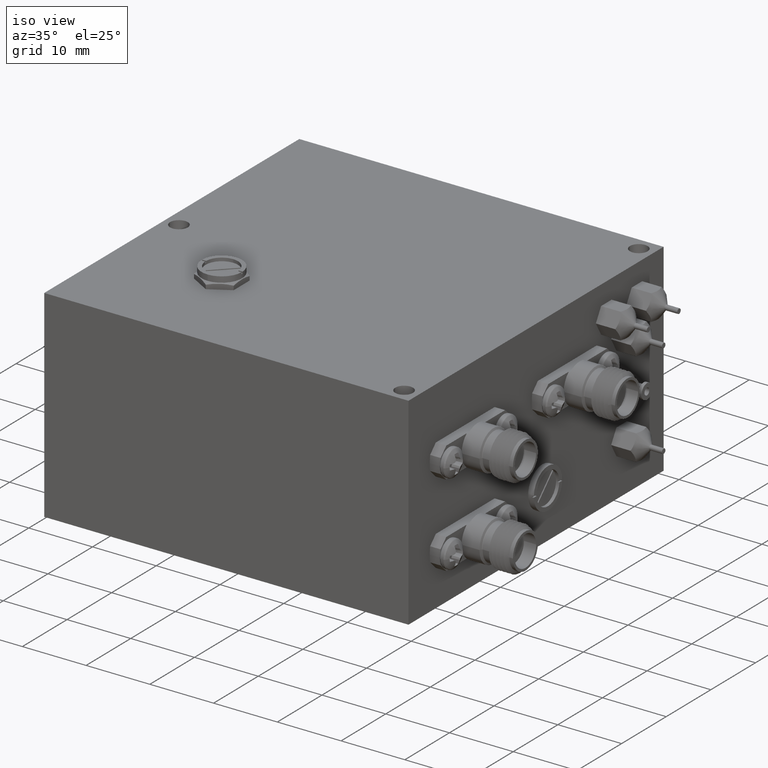
[diagram: clean part render]
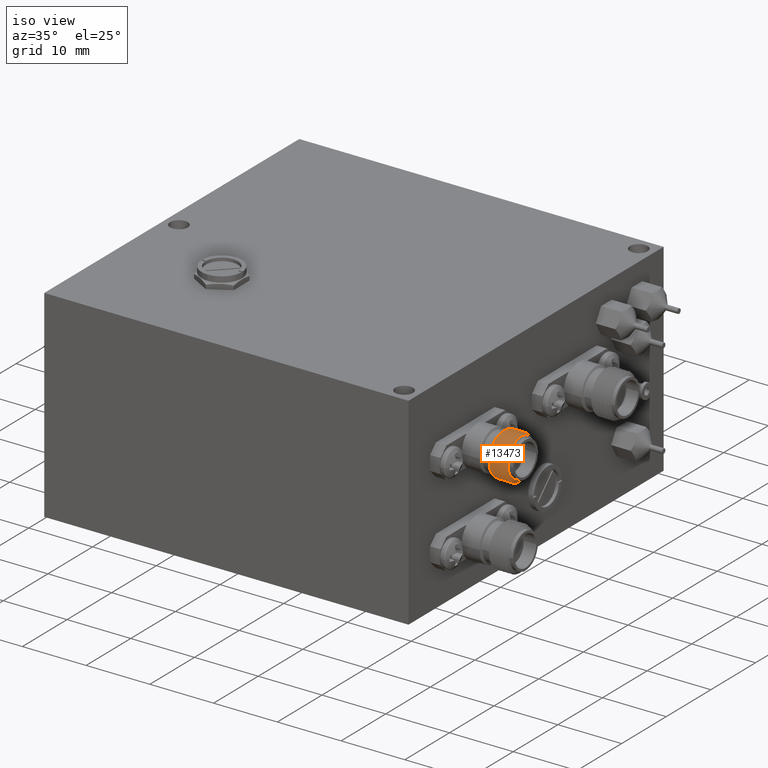
[diagram: same view with one face highlighted and labeled with its STEP entity id]
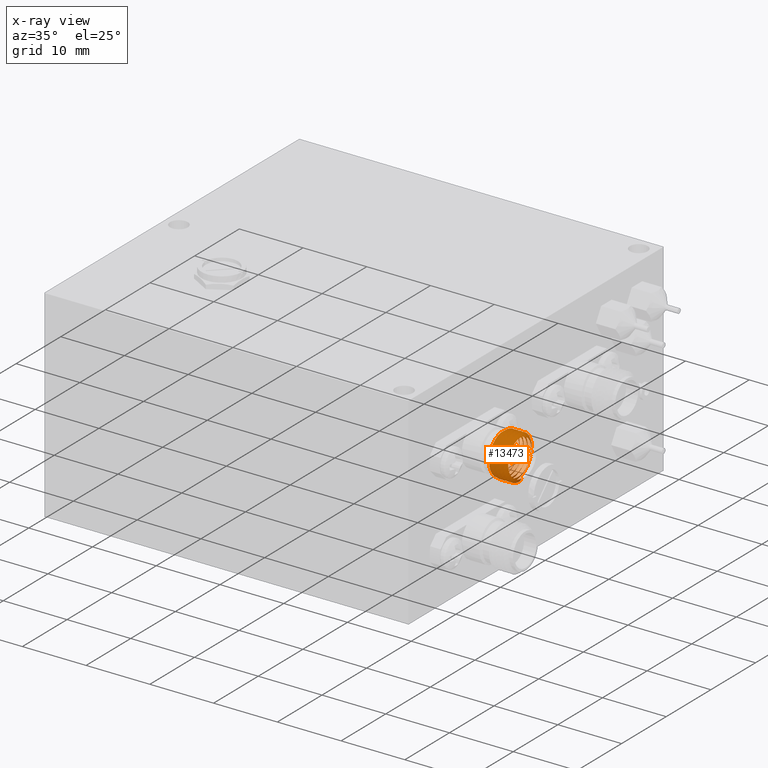
[diagram: x-ray of the same camera — body ghosted, the highlighted face saturated]
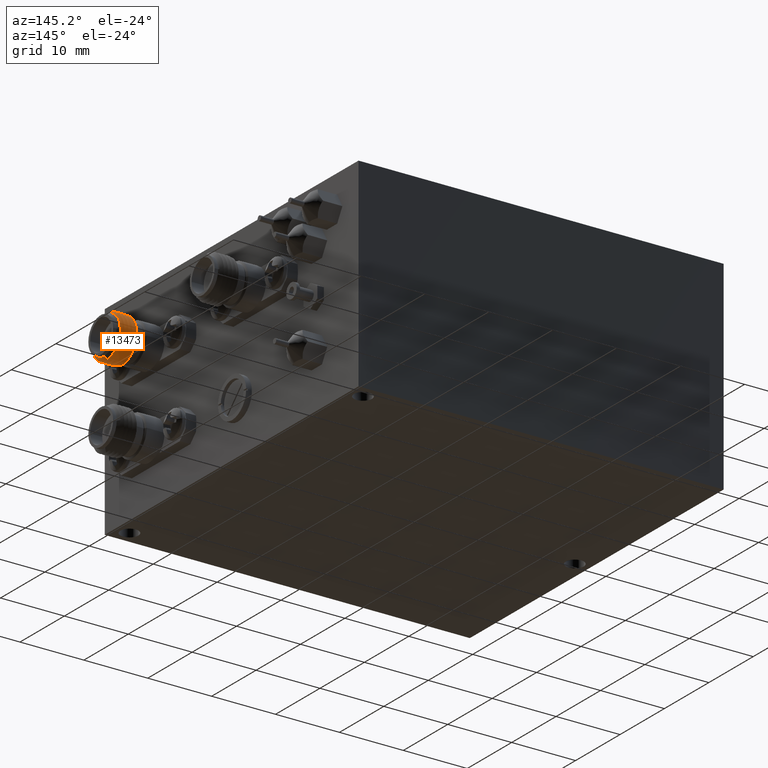
[diagram: same view with one face highlighted and labeled with its STEP entity id]
A machine part, iso view. The second image highlights one B-rep face of the part: STEP entity #13473.
The next image is the same camera in x-ray: the body ghosted, the highlighted face saturated — about 0% of this face is hidden behind the body in this view.
A second angle (auxiliary view) of the same face is appended — the face is thin or edge-on in the first view.
In plain terms, the highlighted face is a freeform B-spline surface patch.
Its self-contained STEP definition (entity closure, byte-faithful):
#277 = CARTESIAN_POINT ( 'NONE',  ( 1.322416666666667700, -0.5484914703891417000, 0.9625166604983957900 ) ) ;
#341 = CARTESIAN_POINT ( 'NONE',  ( 1.351632486540518900, -0.5684382037396831200, 0.7346478170536251400 ) ) ;
#400 = CARTESIAN_POINT ( 'NONE',  ( 1.376583333333334600, -0.7015085296108597400, 0.9625166604983957900 ) ) ;
#460 = CARTESIAN_POINT ( 'NONE',  ( 1.352991431684598800, -0.5179250544449141000, 0.7919435934893945800 ) ) ;
#521 = CARTESIAN_POINT ( 'NONE',  ( 1.378666666666667800, -0.7397627944162886700, 0.8962583302491979900 ) ) ;
#587 = ORIENTED_EDGE ( 'NONE', *, *, #5314, .F. ) ;
#1064 = ORIENTED_EDGE ( 'NONE', *, *, #31271, .T. ) ;
#1092 = CARTESIAN_POINT ( 'NONE',  ( 1.353691243270271500, -0.5105681033398596900, 0.8300000000006252400 ) ) ;
#1323 = CARTESIAN_POINT ( 'NONE',  ( 1.363953039316305700, -0.5673687450793881700, 0.7104703852694200800 ) ) ;
#1602 = CARTESIAN_POINT ( 'NONE',  ( 1.362945418892554100, -0.6336490465677558900, 0.6997026091599503100 ) ) ;
#1769 = CARTESIAN_POINT ( 'NONE',  ( 1.426583333333334600, -0.5609914703891414300, 0.7191339745962155300 ) ) ;
#1809 = CARTESIAN_POINT ( 'NONE',  ( 1.430750000000000900, -0.4969829407782824800, 0.8300000000000006300 ) ) ;
#1889 = CARTESIAN_POINT ( 'NONE',  ( 1.355750000000001300, -0.4969829407782825300, 0.8300000000000002900 ) ) ;
#1937 = CARTESIAN_POINT ( 'NONE',  ( 1.464083333333334500, -0.6890085296108594500, 0.9408660254037851700 ) ) ;
#2023 = CARTESIAN_POINT ( 'NONE',  ( 1.370333333333334700, -0.7210127944162887400, 0.7745669872981079100 ) ) ;
#2133 = CARTESIAN_POINT ( 'NONE',  ( 1.428666666666667400, -0.7397627944162886700, 0.8962583302491981000 ) ) ;
#2171 = CARTESIAN_POINT ( 'NONE',  ( 1.472416666666667600, -0.6890085296108593400, 0.7191339745962157500 ) ) ;
#2286 = CARTESIAN_POINT ( 'NONE',  ( 1.484916666666668000, -0.5609914703891418800, 0.9408660254037851700 ) ) ;
#2377 = CARTESIAN_POINT ( 'NONE',  ( 1.449500000000001100, -0.6250000000000004400, 0.9625166604983961300 ) ) ;
#2407 = CARTESIAN_POINT ( 'NONE',  ( 1.326583333333334300, -0.5609914703891414300, 0.7191339745962156400 ) ) ;
#2449 = CARTESIAN_POINT ( 'NONE',  ( 1.416166666666667900, -0.7210127944162888500, 0.8854330127018925600 ) ) ;
#2453 = CARTESIAN_POINT ( 'NONE',  ( 1.355981127483678800, -0.5761133559190545500, 0.9381203385156557900 ) ) ;
#2533 = CARTESIAN_POINT ( 'NONE',  ( 1.334916666666668300, -0.5609914703891417700, 0.9408660254037851700 ) ) ;
#2639 = CARTESIAN_POINT ( 'NONE',  ( 1.397416666666667900, -0.5484914703891418100, 0.9625166604983957900 ) ) ;
#2669 = CARTESIAN_POINT ( 'NONE',  ( 1.445333333333334500, -0.5102372055837122200, 0.8962583302491982100 ) ) ;
#2713 = CARTESIAN_POINT ( 'NONE',  ( 1.366166666666668100, -0.7210127944162888500, 0.8854330127018925600 ) ) ;
#2717 = CARTESIAN_POINT ( 'NONE',  ( 1.355154026298697900, -0.5388488010248736500, 0.9095075033588867500 ) ) ;
#2803 = CARTESIAN_POINT ( 'NONE',  ( 1.459916666666667400, -0.7015085296108590800, 0.6974833395016044600 ) ) ;
#2847 = CARTESIAN_POINT ( 'NONE',  ( 1.409916666666667800, -0.5609914703891418800, 0.9408660254037850600 ) ) ;
#2904 = ORIENTED_EDGE ( 'NONE', *, *, #30068, .F. ) ;
#2929 = CARTESIAN_POINT ( 'NONE',  ( 1.478666666666667500, -0.7397627944162886700, 0.8962583302491982100 ) ) ;
#3034 = CARTESIAN_POINT ( 'NONE',  ( 1.365222565178984700, -0.5275728415739724400, 0.7337154674341513900 ) ) ;
#3060 = CARTESIAN_POINT ( 'NONE',  ( 1.316166666666668500, -0.5102372055837119900, 0.7637416697508023800 ) ) ;
#3155 = CARTESIAN_POINT ( 'NONE',  ( 1.368250000000001500, -0.4719829407782826200, 0.8300000000000008500 ) ) ;
#3188 = CARTESIAN_POINT ( 'NONE',  ( 1.345333333333334800, -0.5102372055837121100, 0.8962583302491982100 ) ) ;
#3306 = CARTESIAN_POINT ( 'NONE',  ( 1.357833333333334600, -0.7397627944162886700, 0.7637416697508021500 ) ) ;
#3380 = CARTESIAN_POINT ( 'NONE',  ( 1.353691243270271500, -0.5105681033398596900, 0.8300000000006252400 ) ) ;
#3592 = CARTESIAN_POINT ( 'NONE',  ( 1.334916666666667600, -0.7015085296108590800, 0.6974833395016044600 ) ) ;
#4403 = CARTESIAN_POINT ( 'NONE',  ( 1.351632486540518900, -0.5684382037396831200, 0.7346478170536251400 ) ) ;
#4623 = CARTESIAN_POINT ( 'NONE',  ( 1.360848219047073600, -0.7396703653398036800, 0.7746557617826112000 ) ) ;
#4696 = CARTESIAN_POINT ( 'NONE',  ( 1.462000000000000900, -0.6250000000000004400, 0.9408660254037850600 ) ) ;
#4786 = CARTESIAN_POINT ( 'NONE',  ( 1.399500000000001100, -0.6250000000000003300, 0.7191339745962153100 ) ) ;
#4840 = CARTESIAN_POINT ( 'NONE',  ( 1.432833333333334500, -0.5289872055837122600, 0.8854330127018927900 ) ) ;
#4929 = CARTESIAN_POINT ( 'NONE',  ( 1.441166666666667800, -0.7210127944162886300, 0.8854330127018926700 ) ) ;
#5033 = CARTESIAN_POINT ( 'NONE',  ( 1.459916666666667600, -0.7015085296108588600, 0.6974833395016043500 ) ) ;
#5068 = CARTESIAN_POINT ( 'NONE',  ( 1.434916666666668200, -0.5609914703891416600, 0.9408660254037849400 ) ) ;
#5109 = CARTESIAN_POINT ( 'NONE',  ( 1.472416666666667800, -0.6890085296108593400, 0.7191339745962158600 ) ) ;
#5157 = B_SPLINE_CURVE_WITH_KNOTS ( 'NONE', 1,
 ( #12056, #21266 ),
 .UNSPECIFIED., .F., .F.,
 ( 2, 2 ),
 ( 0.0000000000000000000, 0.0006350000000000044800 ),
 .UNSPECIFIED. ) ;
#5160 = CARTESIAN_POINT ( 'NONE',  ( 1.414083333333334500, -0.5484914703891410300, 0.6974833395016049000 ) ) ;
#5192 = CARTESIAN_POINT ( 'NONE',  ( 1.414083333333334900, -0.6890085296108594500, 0.9408660254037853900 ) ) ;
#5236 = CARTESIAN_POINT ( 'NONE',  ( 1.474500000000001500, -0.6250000000000003300, 0.7191339745962154200 ) ) ;
#5282 = CARTESIAN_POINT ( 'NONE',  ( 1.462000000000000900, -0.6250000000000004400, 0.6974833395016043500 ) ) ;
#5314 = EDGE_CURVE ( 'NONE', #30065, #32068, #25106, .T. ) ;
#5319 = CARTESIAN_POINT ( 'NONE',  ( 1.443250000000001500, -0.7530170592217180200, 0.8300000000000005200 ) ) ;
#5368 = CARTESIAN_POINT ( 'NONE',  ( 1.376583333333334800, -0.5609914703891413200, 0.7191339745962158600 ) ) ;
#5417 = CARTESIAN_POINT ( 'NONE',  ( 1.443250000000001000, -0.4719829407782825100, 0.8300000000000006300 ) ) ;
#5452 = CARTESIAN_POINT ( 'NONE',  ( 1.432833333333334500, -0.7397627944162887800, 0.7637416697508023800 ) ) ;
#5499 = CARTESIAN_POINT ( 'NONE',  ( 1.391166666666668000, -0.7210127944162888500, 0.8854330127018925600 ) ) ;
#5503 = CARTESIAN_POINT ( 'NONE',  ( 1.355565543954522400, -0.5560893095883074900, 0.9257105285942960300 ) ) ;
#5550 = CARTESIAN_POINT ( 'NONE',  ( 1.412000000000001000, -0.6250000000000003300, 0.6974833395016044600 ) ) ;
#5585 = CARTESIAN_POINT ( 'NONE',  ( 1.470333333333334200, -0.5102372055837124400, 0.8962583302491982100 ) ) ;
#5626 = CARTESIAN_POINT ( 'NONE',  ( 1.353666666666668100, -0.5289872055837117100, 0.7745669872981083600 ) ) ;
#5714 = CARTESIAN_POINT ( 'NONE',  ( 1.428666666666667400, -0.7397627944162886700, 0.8962583302491982100 ) ) ;
#5768 = CARTESIAN_POINT ( 'NONE',  ( 1.358576897647566300, -0.7195248229567544600, 0.9089236849974511300 ) ) ;
#5855 = CARTESIAN_POINT ( 'NONE',  ( 1.451583333333334300, -0.7015085296108595200, 0.9625166604983957900 ) ) ;
#5904 = CARTESIAN_POINT ( 'NONE',  ( 1.364083333333334900, -0.6890085296108593400, 0.9408660254037851700 ) ) ;
#5983 = CARTESIAN_POINT ( 'NONE',  ( 1.359941243270269300, -0.7502572142074417400, 0.8299999999994676100 ) ) ;
#5993 = CARTESIAN_POINT ( 'NONE',  ( 1.347416666666668000, -0.6890085296108591200, 0.7191339745962157500 ) ) ;
#6232 = CARTESIAN_POINT ( 'NONE',  ( 1.370333333333334700, -0.5102372055837122200, 0.8962583302491982100 ) ) ;
#7549 = CARTESIAN_POINT ( 'NONE',  ( 1.361702719265506700, -0.7058241989662769100, 0.7297066870898026900 ) ) ;
#7779 = CARTESIAN_POINT ( 'NONE',  ( 1.441166666666667800, -0.7210127944162887400, 0.8854330127018926700 ) ) ;
#7786 = VERTEX_POINT ( 'NONE', #35692 ) ;
#7863 = CARTESIAN_POINT ( 'NONE',  ( 1.378666666666668000, -0.5289872055837120400, 0.7745669872981079100 ) ) ;
#7987 = CARTESIAN_POINT ( 'NONE',  ( 1.451583333333334300, -0.5609914703891414300, 0.7191339745962156400 ) ) ;
#8035 = CARTESIAN_POINT ( 'NONE',  ( 1.459916666666667900, -0.5609914703891418800, 0.9408660254037850600 ) ) ;
#8090 = ORIENTED_EDGE ( 'NONE', *, *, #13209, .F. ) ;
#8091 = CARTESIAN_POINT ( 'NONE',  ( 1.378666666666667800, -0.7397627944162888900, 0.8962583302491977700 ) ) ;
#8123 = CARTESIAN_POINT ( 'NONE',  ( 1.407833333333334600, -0.5289872055837122600, 0.8854330127018927900 ) ) ;
#8184 = EDGE_CURVE ( 'NONE', #7786, #8760, #5157, .T. ) ;
#8228 = CARTESIAN_POINT ( 'NONE',  ( 1.430750000000000900, -0.7780170592217181500, 0.8300000000000000700 ) ) ;
#8260 = CARTESIAN_POINT ( 'NONE',  ( 1.403666666666668000, -0.5289872055837121500, 0.7745669872981078000 ) ) ;
#8298 = CARTESIAN_POINT ( 'NONE',  ( 1.470333333333334200, -0.7210127944162888500, 0.7745669872981078000 ) ) ;
#8302 = CARTESIAN_POINT ( 'NONE',  ( 1.359941243270269300, -0.7502572142074417400, 0.8299999999994676100 ) ) ;
#8351 = CARTESIAN_POINT ( 'NONE',  ( 1.453666666666667800, -0.7397627944162887800, 0.8962583302491982100 ) ) ;
#8386 = CARTESIAN_POINT ( 'NONE',  ( 1.393250000000001700, -0.7530170592217180200, 0.8300000000000005200 ) ) ;
#8433 = CARTESIAN_POINT ( 'NONE',  ( 1.420333333333334600, -0.7210127944162886300, 0.7745669872981079100 ) ) ;
#8436 = CARTESIAN_POINT ( 'NONE',  ( 1.359681094375930500, -0.7490754303303981400, 0.8455985490232553700 ) ) ;
#8485 = CARTESIAN_POINT ( 'NONE',  ( 1.409916666666667400, -0.7015085296108588600, 0.6974833395016044600 ) ) ;
#8517 = CARTESIAN_POINT ( 'NONE',  ( 1.449500000000001100, -0.6250000000000004400, 0.9625166604983961300 ) ) ;
#8562 = CARTESIAN_POINT ( 'NONE',  ( 1.355427488492216200, -0.5500097221791242500, 0.9207246178149328700 ) ) ;
#8614 = CARTESIAN_POINT ( 'NONE',  ( 1.407833333333334400, -0.7397627944162884500, 0.7637416697508020400 ) ) ;
#8653 = CARTESIAN_POINT ( 'NONE',  ( 1.397416666666668100, -0.5484914703891417000, 0.9625166604983960200 ) ) ;
#8758 = CARTESIAN_POINT ( 'NONE',  ( 1.366166666666668100, -0.5102372055837118800, 0.7637416697508026000 ) ) ;
#8760 = VERTEX_POINT ( 'NONE', #11857 ) ;
#8792 = CARTESIAN_POINT ( 'NONE',  ( 1.424500000000001200, -0.6250000000000004400, 0.9625166604983961300 ) ) ;
#8837 = CARTESIAN_POINT ( 'NONE',  ( 1.356385368117575500, -0.5981586144242757600, 0.9462979250268333000 ) ) ;
#8918 = CARTESIAN_POINT ( 'NONE',  ( 1.405750000000001600, -0.7780170592217182700, 0.8300000000000002900 ) ) ;
#9044 = CARTESIAN_POINT ( 'NONE',  ( 1.395333333333334600, -0.5102372055837122200, 0.8962583302491982100 ) ) ;
#9186 = CARTESIAN_POINT ( 'NONE',  ( 1.384916666666667700, -0.7015085296108590800, 0.6974833395016044600 ) ) ;
#9321 = CARTESIAN_POINT ( 'NONE',  ( 1.337000000000000900, -0.6250000000000004400, 0.6974833395016044600 ) ) ;
#9389 = CARTESIAN_POINT ( 'NONE',  ( 1.351816726955581600, -0.5598423026224531600, 0.7393757710400694600 ) ) ;
#9446 = CARTESIAN_POINT ( 'NONE',  ( 1.312000000000000900, -0.6250000000000004400, 0.6974833395016044600 ) ) ;
#9565 = CARTESIAN_POINT ( 'NONE',  ( 1.332833333333334200, -0.7397627944162886700, 0.7637416697508021500 ) ) ;
#10906 = CARTESIAN_POINT ( 'NONE',  ( 1.374500000000001200, -0.6250000000000004400, 0.7191339745962154200 ) ) ;
#11049 = CARTESIAN_POINT ( 'NONE',  ( 1.464083333333334500, -0.6890085296108594500, 0.9408660254037851700 ) ) ;
#11090 = CARTESIAN_POINT ( 'NONE',  ( 1.455750000000001400, -0.4969829407782826400, 0.8300000000000002900 ) ) ;
#11148 = CARTESIAN_POINT ( 'NONE',  ( 1.418250000000001100, -0.4719829407782826200, 0.8300000000000009600 ) ) ;
#11186 = CARTESIAN_POINT ( 'NONE',  ( 1.439083333333334800, -0.6890085296108595700, 0.9408660254037851700 ) ) ;
#11273 = CARTESIAN_POINT ( 'NONE',  ( 1.405750000000000900, -0.7780170592217182700, 0.8299999999999998500 ) ) ;
#11303 = CARTESIAN_POINT ( 'NONE',  ( 1.391166666666668000, -0.7210127944162887400, 0.8854330127018927900 ) ) ;
#11437 = CARTESIAN_POINT ( 'NONE',  ( 1.428666666666667900, -0.5289872055837120400, 0.7745669872981078000 ) ) ;
#11484 = CARTESIAN_POINT ( 'NONE',  ( 1.393250000000001200, -0.7530170592217180200, 0.8300000000000001800 ) ) ;
#11541 = CARTESIAN_POINT ( 'NONE',  ( 1.441166666666667800, -0.5102372055837119900, 0.7637416697508023800 ) ) ;
#11576 = CARTESIAN_POINT ( 'NONE',  ( 1.464083333333334300, -0.5484914703891415900, 0.6974833395016046800 ) ) ;
#11629 = CARTESIAN_POINT ( 'NONE',  ( 1.355022318154319300, -0.5339154262140052300, 0.9034323947599097700 ) ) ;
#11682 = CARTESIAN_POINT ( 'NONE',  ( 1.389083333333334300, -0.5484914703891410300, 0.6974833395016049000 ) ) ;
#11718 = CARTESIAN_POINT ( 'NONE',  ( 1.434916666666668000, -0.7015085296108589700, 0.6974833395016044600 ) ) ;
#11762 = CARTESIAN_POINT ( 'NONE',  ( 1.353833503074054900, -0.5103217021318750000, 0.8378139484000273200 ) ) ;
#11846 = CARTESIAN_POINT ( 'NONE',  ( 1.328666666666667800, -0.5289872055837120400, 0.7745669872981078000 ) ) ;
#11857 = CARTESIAN_POINT ( 'NONE',  ( 1.462000000000000900, -0.6250000000000004400, 0.6974833395016043500 ) ) ;
#11895 = CARTESIAN_POINT ( 'NONE',  ( 1.395333333333334600, -0.7210127944162884100, 0.7745669872981079100 ) ) ;
#11993 = CARTESIAN_POINT ( 'NONE',  ( 1.441166666666667800, -0.5102372055837122200, 0.7637416697508023800 ) ) ;
#12037 = CARTESIAN_POINT ( 'NONE',  ( 1.389083333333334800, -0.6890085296108596800, 0.9408660254037848300 ) ) ;
#12056 = CARTESIAN_POINT ( 'NONE',  ( 1.474500000000001500, -0.6250000000000003300, 0.7191339745962154200 ) ) ;
#12132 = CARTESIAN_POINT ( 'NONE',  ( 1.414083333333334700, -0.5484914703891414800, 0.6974833395016044600 ) ) ;
#12140 =( BOUNDED_SURFACE ( )  B_SPLINE_SURFACE ( 1, 2, ( 
 ( #37015, #34262, #15898, #18916, #28961, #18791, #32302, #2286, #29633, #17229, #23589, #17362, #38472, #2171, #14158, #20133, #19996, #11049, #26599, #17477, #29359, #20396, #38610, #7987, #23330, #23206, #16964, #5319, #4929, #11186, #14556, #5068, #38345, #26350, #11437, #1769, #14291, #32677, #14024, #26467, #32432, #5192, #26207, #35308, #8123, #23454, #8260, #29234, #4786, #38068, #29494, #8386, #11303, #23067, #32558, #20275, #26075, #14419, #7863, #29087, #10906, #32170, #2023, #35442, #35567, #20527, #35172, #17090, #38210, #1889, #15069, #30033, #20926, #5993, #35969, #39258, #38859, #32947, #29766, #2533, #29900, #24230, #11846, #2407, #20801 ),
 ( #30177, #38991, #23836, #26738, #2929, #23708, #32810, #17603, #5585, #27269, #26882, #11576, #14803, #2803, #17987, #38732, #39129, #5855, #8517, #33338, #2669, #17866, #11993, #20666, #23977, #11718, #5452, #36231, #5714, #27011, #8792, #36093, #33081, #14674, #14938, #12132, #21061, #24112, #27134, #8918, #33204, #18113, #21202, #8653, #9044, #30297, #35702, #35844, #17734, #9186, #27633, #30927, #521, #400, #27764, #12388, #6232, #15723, #33587, #27510, #36872, #12778, #3306, #18763, #27889, #30414, #24752, #12258, #3188, #30543, #24623, #18496, #9321, #3592, #9565, #21324, #18253, #21833, #30680, #277, #33469, #15333, #3060, #15478, #9446 ) ),
 .UNSPECIFIED., .F., .F., .F. ) 
 B_SPLINE_SURFACE_WITH_KNOTS ( ( 2, 2 ),
 ( 3, 2, 2, 2, 2, 2, 2, 2, 2, 2, 2, 2, 2, 2, 2, 2, 2, 2, 2, 2, 2, 2, 2, 2, 2, 2, 2, 2, 2, 2, 2, 2, 2, 2, 2, 2, 2, 2, 2, 2, 2, 2, 3 ),
 ( 0.0000000000000000000, 1.000000000000000000 ),
 ( 0.0000000000000000000, 0.02380952380952380800, 0.04761904761904761600, 0.07142857142857142500, 0.09523809523809523300, 0.1190476190476190400, 0.1428571428571428500, 0.1666666666666666600, 0.1904761904761904700, 0.2142857142857142700, 0.2380952380952380800, 0.2619047619047619200, 0.2857142857142857000, 0.3095238095238095300, 0.3333333333333333100, 0.3571428571428571500, 0.3809523809523809300, 0.4047619047619047700, 0.4285714285714285500, 0.4523809523809523800, 0.4761904761904761600, 0.5000000000000000000, 0.5238095238095238400, 0.5476190476190476700, 0.5714285714285714000, 0.5952380952380952300, 0.6190476190476190700, 0.6428571428571429000, 0.6666666666666666300, 0.6904761904761904700, 0.7142857142857143000, 0.7380952380952381400, 0.7619047619047618600, 0.7857142857142857000, 0.8095238095238095300, 0.8333333333333333700, 0.8571428571428571000, 0.8809523809523809300, 0.9047619047619047700, 0.9285714285714286000, 0.9523809523809523300, 0.9761904761904761600, 1.000000000000000000 ),
 .UNSPECIFIED. ) 
 GEOMETRIC_REPRESENTATION_ITEM ( )  RATIONAL_B_SPLINE_SURFACE ( (
 ( 1.000000000000000000, 0.8660254037844387100, 1.000000000000000000, 0.8660254037844387100, 1.000000000000000000, 0.8660254037844387100, 1.000000000000000000, 0.8660254037844387100, 1.000000000000000000, 0.8660254037844387100, 1.000000000000000000, 0.8660254037844387100, 1.000000000000000000, 0.8660254037844387100, 1.000000000000000000, 0.8660254037844387100, 1.000000000000000000, 0.8660254037844387100, 1.000000000000000000, 0.8660254037844387100, 1.000000000000000000, 0.8660254037844387100, 1.000000000000000000, 0.8660254037844387100, 1.000000000000000000, 0.8660254037844387100, 1.000000000000000000, 0.8660254037844387100, 1.000000000000000000, 0.8660254037844387100, 1.000000000000000000, 0.8660254037844387100, 1.000000000000000000, 0.8660254037844387100, 1.000000000000000000, 0.8660254037844387100, 1.000000000000000000, 0.8660254037844387100, 1.000000000000000000, 0.8660254037844387100, 1.000000000000000000, 0.8660254037844387100, 1.000000000000000000, 0.8660254037844387100, 1.000000000000000000, 0.8660254037844387100, 1.000000000000000000, 0.8660254037844387100, 1.000000000000000000, 0.8660254037844387100, 1.000000000000000000, 0.8660254037844387100, 1.000000000000000000, 0.8660254037844387100, 1.000000000000000000, 0.8660254037844387100, 1.000000000000000000, 0.8660254037844387100, 1.000000000000000000, 0.8660254037844387100, 1.000000000000000000, 0.8660254037844387100, 1.000000000000000000, 0.8660254037844387100, 1.000000000000000000, 0.8660254037844387100, 1.000000000000000000, 0.8660254037844387100, 1.000000000000000000, 0.8660254037844387100, 1.000000000000000000, 0.8660254037844387100, 1.000000000000000000, 0.8660254037844387100, 1.000000000000000000, 0.8660254037844387100, 1.000000000000000000, 0.8660254037844387100, 1.000000000000000000, 0.8660254037844387100, 1.000000000000000000, 0.8660254037844387100, 1.000000000000000000, 0.8660254037844387100, 1.000000000000000000),
 ( 1.000000000000000000, 0.8660254037844387100, 1.000000000000000000, 0.8660254037844387100, 1.000000000000000000, 0.8660254037844387100, 1.000000000000000000, 0.8660254037844387100, 1.000000000000000000, 0.8660254037844387100, 1.000000000000000000, 0.8660254037844387100, 1.000000000000000000, 0.8660254037844387100, 1.000000000000000000, 0.8660254037844387100, 1.000000000000000000, 0.8660254037844387100, 1.000000000000000000, 0.8660254037844387100, 1.000000000000000000, 0.8660254037844387100, 1.000000000000000000, 0.8660254037844387100, 1.000000000000000000, 0.8660254037844387100, 1.000000000000000000, 0.8660254037844387100, 1.000000000000000000, 0.8660254037844387100, 1.000000000000000000, 0.8660254037844387100, 1.000000000000000000, 0.8660254037844387100, 1.000000000000000000, 0.8660254037844387100, 1.000000000000000000, 0.8660254037844387100, 1.000000000000000000, 0.8660254037844387100, 1.000000000000000000, 0.8660254037844387100, 1.000000000000000000, 0.8660254037844387100, 1.000000000000000000, 0.8660254037844387100, 1.000000000000000000, 0.8660254037844387100, 1.000000000000000000, 0.8660254037844387100, 1.000000000000000000, 0.8660254037844387100, 1.000000000000000000, 0.8660254037844387100, 1.000000000000000000, 0.8660254037844387100, 1.000000000000000000, 0.8660254037844387100, 1.000000000000000000, 0.8660254037844387100, 1.000000000000000000, 0.8660254037844387100, 1.000000000000000000, 0.8660254037844387100, 1.000000000000000000, 0.8660254037844387100, 1.000000000000000000, 0.8660254037844387100, 1.000000000000000000, 0.8660254037844387100, 1.000000000000000000, 0.8660254037844387100, 1.000000000000000000, 0.8660254037844387100, 1.000000000000000000, 0.8660254037844387100, 1.000000000000000000, 0.8660254037844387100, 1.000000000000000000, 0.8660254037844387100, 1.000000000000000000, 0.8660254037844387100, 1.000000000000000000, 0.8660254037844387100, 1.000000000000000000) ) ) 
 REPRESENTATION_ITEM ( '' )  SURFACE ( )  );
#12258 = CARTESIAN_POINT ( 'NONE',  ( 1.347416666666668300, -0.5484914703891417000, 0.9625166604983960200 ) ) ;
#12388 = CARTESIAN_POINT ( 'NONE',  ( 1.372416666666668000, -0.5484914703891417000, 0.9625166604983960200 ) ) ;
#12778 = CARTESIAN_POINT ( 'NONE',  ( 1.359916666666668000, -0.7015085296108590800, 0.6974833395016044600 ) ) ;
#12838 = CARTESIAN_POINT ( 'NONE',  ( 1.352826180516759600, -0.5218087593785596400, 0.7830860000215483800 ) ) ;
#13209 = EDGE_CURVE ( 'NONE', #27652, #38986, #30757, .T. ) ;
#13444 = CARTESIAN_POINT ( 'NONE',  ( 1.363776570201087300, -0.5778358217556255300, 0.7063035695771021600 ) ) ;
#13473 = ADVANCED_FACE ( 'NONE', ( #34712 ), #12140, .F. ) ;
#13710 = CARTESIAN_POINT ( 'NONE',  ( 1.363516321534613300, -0.5942497850606656100, 0.7020731514953327800 ) ) ;
#13927 = CARTESIAN_POINT ( 'NONE',  ( 1.434916666666668000, -0.5609914703891416600, 0.9408660254037850600 ) ) ;
#14024 = CARTESIAN_POINT ( 'NONE',  ( 1.420333333333334600, -0.7210127944162884100, 0.7745669872981079100 ) ) ;
#14158 = CARTESIAN_POINT ( 'NONE',  ( 1.470333333333334200, -0.7210127944162887400, 0.7745669872981078000 ) ) ;
#14206 = CARTESIAN_POINT ( 'NONE',  ( 1.451583333333334300, -0.5609914703891414300, 0.7191339745962155300 ) ) ;
#14259 = CARTESIAN_POINT ( 'NONE',  ( 1.424500000000001200, -0.6250000000000008900, 0.9625166604983962400 ) ) ;
#14291 = CARTESIAN_POINT ( 'NONE',  ( 1.424500000000001000, -0.6250000000000004400, 0.7191339745962154200 ) ) ;
#14338 = CARTESIAN_POINT ( 'NONE',  ( 1.353691243270271500, -0.5105681033398596900, 0.8300000000006252400 ) ) ;
#14419 = CARTESIAN_POINT ( 'NONE',  ( 1.380750000000001300, -0.4969829407782825300, 0.8300000000000002900 ) ) ;
#14464 = CARTESIAN_POINT ( 'NONE',  ( 1.453666666666667800, -0.5289872055837122600, 0.7745669872981078000 ) ) ;
#14505 = ORIENTED_EDGE ( 'NONE', *, *, #27962, .F. ) ;
#14556 = CARTESIAN_POINT ( 'NONE',  ( 1.437000000000001200, -0.6250000000000004400, 0.9408660254037849400 ) ) ;
#14599 = CARTESIAN_POINT ( 'NONE',  ( 1.384916666666668400, -0.5609914703891418800, 0.9408660254037851700 ) ) ;
#14602 = CARTESIAN_POINT ( 'NONE',  ( 1.357387587294550900, -0.6603506987481238000, 0.9458151772406273600 ) ) ;
#14645 = CARTESIAN_POINT ( 'NONE',  ( 1.401583333333334500, -0.7015085296108597400, 0.9625166604983956800 ) ) ;
#14674 = CARTESIAN_POINT ( 'NONE',  ( 1.418250000000001300, -0.4719829407782825100, 0.8300000000000005200 ) ) ;
#14713 = ORIENTED_EDGE ( 'NONE', *, *, #8184, .F. ) ;
#14717 = CARTESIAN_POINT ( 'NONE',  ( 1.354389483138386700, -0.5157601910639012500, 0.8687438452850840800 ) ) ;
#14771 = CARTESIAN_POINT ( 'NONE',  ( 1.445333333333334500, -0.5102372055837123300, 0.8962583302491984300 ) ) ;
#14803 = CARTESIAN_POINT ( 'NONE',  ( 1.462000000000000900, -0.6250000000000004400, 0.6974833395016043500 ) ) ;
#14938 = CARTESIAN_POINT ( 'NONE',  ( 1.416166666666667900, -0.5102372055837121100, 0.7637416697508023800 ) ) ;
#15069 = CARTESIAN_POINT ( 'NONE',  ( 1.353666666666668100, -0.5289872055837120400, 0.7745669872981078000 ) ) ;
#15110 = CARTESIAN_POINT ( 'NONE',  ( 1.418250000000001100, -0.7530170592217180200, 0.8300000000000002900 ) ) ;
#15333 = CARTESIAN_POINT ( 'NONE',  ( 1.318250000000001000, -0.4719829407782826800, 0.8300000000000002900 ) ) ;
#15478 = CARTESIAN_POINT ( 'NONE',  ( 1.314083333333334600, -0.5484914703891413700, 0.6974833395016044600 ) ) ;
#15723 = CARTESIAN_POINT ( 'NONE',  ( 1.368250000000001300, -0.4719829407782828400, 0.8300000000000002900 ) ) ;
#15793 =( BOUNDED_CURVE ( )  B_SPLINE_CURVE ( 2, ( #5236, #5109, #8298, #20189, #23120, #1937, #4696, #8035, #32600, #11090, #14464, #14206, #35356, #20578, #17275, #25997, #7779, #20036, #29007, #13927, #4840, #1809, #38389, #20314, #23373, #26397, #8433, #15110, #2449, #21107, #39036, #2847, #38773, #29811, #17775, #29942, #39297, #35889, #11895, #11484, #5499, #12037, #36141, #14599, #27051, #38901, #23880, #5368, #29685, #20970, #24158, #26639, #2713, #5904, #32717, #35749, #17646, #32994, #5626, #23752, #20718 ),
 .UNSPECIFIED., .F., .F. ) 
 B_SPLINE_CURVE_WITH_KNOTS ( ( 3, 2, 2, 2, 2, 2, 2, 2, 2, 2, 2, 2, 2, 2, 2, 2, 2, 2, 2, 2, 2, 2, 2, 2, 2, 2, 2, 2, 2, 2, 3 ),
 ( 0.1428571428571428500, 0.1666666666666666600, 0.1904761904761904700, 0.2142857142857142700, 0.2380952380952380800, 0.2619047619047619200, 0.2857142857142857000, 0.3095238095238095300, 0.3333333333333333100, 0.3571428571428571500, 0.3809523809523809300, 0.4047619047619047700, 0.4285714285714285500, 0.4523809523809523800, 0.4761904761904761600, 0.5000000000000000000, 0.5238095238095237200, 0.5476190476190476700, 0.5714285714285714000, 0.5952380952380951200, 0.6190476190476190700, 0.6428571428571427900, 0.6666666666666665200, 0.6904761904761904700, 0.7142857142857141900, 0.7380952380952381400, 0.7619047619047618600, 0.7857142857142855900, 0.8095238095238095300, 0.8333333333333332600, 0.8449760257393235100 ),
 .UNSPECIFIED. ) 
 CURVE ( )  GEOMETRIC_REPRESENTATION_ITEM ( )  RATIONAL_B_SPLINE_CURVE ( ( 1.000000000000000000, 0.8660254037844387100, 1.000000000000000000, 0.8660254037844387100, 1.000000000000000000, 0.8660254037844387100, 1.000000000000000000, 0.8660254037844387100, 1.000000000000000000, 0.8660254037844387100, 1.000000000000000000, 0.8660254037844387100, 1.000000000000000000, 0.8660254037844387100, 1.000000000000000000, 0.8660254037844387100, 1.000000000000000000, 0.8660254037844387100, 1.000000000000000000, 0.8660254037844387100, 1.000000000000000000, 0.8660254037844387100, 1.000000000000000000, 0.8660254037844387100, 1.000000000000000000, 0.8660254037844387100, 1.000000000000000000, 0.8660254037844387100, 1.000000000000000000, 0.8660254037844387100, 1.000000000000000000, 0.8660254037844387100, 1.000000000000000000, 0.8660254037844387100, 1.000000000000000000, 0.8660254037844387100, 1.000000000000000000, 0.8660254037844387100, 1.000000000000000000, 0.8660254037844387100, 1.000000000000000000, 0.8660254037844387100, 1.000000000000000000, 0.8660254037844387100, 1.000000000000000000, 0.8660254037844387100, 1.000000000000000000, 0.8660254037844387100, 1.000000000000000000, 0.8660254037844387100, 1.000000000000000000, 0.8660254037844387100, 1.000000000000000000, 0.8660254037844387100, 1.000000000000000000, 0.8660254037844387100, 1.000000000000000000, 0.8660254037844387100, 1.000000000000000000, 0.9344873494139096500, 0.9330451645437166700 ) ) 
 REPRESENTATION_ITEM ( '' )  );
#15898 = CARTESIAN_POINT ( 'NONE',  ( 1.495333333333334700, -0.7210127944162886300, 0.7745669872981078000 ) ) ;
#16660 = CARTESIAN_POINT ( 'NONE',  ( 1.360035413547616000, -0.7504203219123445300, 0.8243381568307408500 ) ) ;
#16792 = CARTESIAN_POINT ( 'NONE',  ( 1.360676117219290900, -0.7439413649943580300, 0.7853945379975324500 ) ) ;
#16927 = CARTESIAN_POINT ( 'NONE',  ( 1.362432302463700800, -0.6668464345929885400, 0.7068534782860377300 ) ) ;
#16964 = CARTESIAN_POINT ( 'NONE',  ( 1.445333333333334500, -0.7210127944162887400, 0.7745669872981079100 ) ) ;
#17012 = EDGE_LOOP ( 'NONE', ( #587, #14505, #14713, #1064, #8090, #2904 ) ) ;
#17090 = CARTESIAN_POINT ( 'NONE',  ( 1.359916666666668000, -0.5609914703891417700, 0.9408660254037849400 ) ) ;
#17229 = CARTESIAN_POINT ( 'NONE',  ( 1.480750000000001300, -0.4969829407782828100, 0.8300000000000005200 ) ) ;
#17275 = CARTESIAN_POINT ( 'NONE',  ( 1.445333333333334500, -0.7210127944162887400, 0.7745669872981079100 ) ) ;
#17329 = CARTESIAN_POINT ( 'NONE',  ( 1.380750000000001500, -0.7780170592217183800, 0.8300000000000000700 ) ) ;
#17362 = CARTESIAN_POINT ( 'NONE',  ( 1.476583333333334200, -0.5609914703891415400, 0.7191339745962156400 ) ) ;
#17477 = CARTESIAN_POINT ( 'NONE',  ( 1.459916666666667600, -0.5609914703891418800, 0.9408660254037851700 ) ) ;
#17603 = CARTESIAN_POINT ( 'NONE',  ( 1.472416666666668300, -0.5484914703891419200, 0.9625166604983962400 ) ) ;
#17646 = CARTESIAN_POINT ( 'NONE',  ( 1.357833333333334800, -0.5289872055837123700, 0.8854330127018932300 ) ) ;
#17649 = CARTESIAN_POINT ( 'NONE',  ( 1.356640957636844300, -0.6135399356467156100, 0.9492475510204537700 ) ) ;
#17694 = CARTESIAN_POINT ( 'NONE',  ( 1.399500000000001300, -0.6250000000000005600, 0.9625166604983961300 ) ) ;
#17734 = CARTESIAN_POINT ( 'NONE',  ( 1.387000000000001100, -0.6250000000000004400, 0.6974833395016042400 ) ) ;
#17775 = CARTESIAN_POINT ( 'NONE',  ( 1.403666666666668000, -0.5289872055837120400, 0.7745669872981079100 ) ) ;
#17778 = CARTESIAN_POINT ( 'NONE',  ( 1.357521712671877700, -0.6679336554854672400, 0.9434670239669251700 ) ) ;
#17830 = CARTESIAN_POINT ( 'NONE',  ( 1.420333333333334600, -0.5102372055837124400, 0.8962583302491984300 ) ) ;
#17866 = CARTESIAN_POINT ( 'NONE',  ( 1.443250000000001000, -0.4719829407782825100, 0.8300000000000005200 ) ) ;
#17913 = CARTESIAN_POINT ( 'NONE',  ( 1.359423770768678500, -0.7457143536808251700, 0.8609033750555861200 ) ) ;
#17987 = CARTESIAN_POINT ( 'NONE',  ( 1.457833333333334400, -0.7397627944162887800, 0.7637416697508023800 ) ) ;
#18113 = CARTESIAN_POINT ( 'NONE',  ( 1.401583333333334700, -0.7015085296108595200, 0.9625166604983957900 ) ) ;
#18253 = CARTESIAN_POINT ( 'NONE',  ( 1.328666666666668000, -0.7397627944162886700, 0.8962583302491981000 ) ) ;
#18496 = CARTESIAN_POINT ( 'NONE',  ( 1.339083333333334700, -0.5484914703891414800, 0.6974833395016046800 ) ) ;
#18763 = CARTESIAN_POINT ( 'NONE',  ( 1.355750000000001300, -0.7780170592217183800, 0.8300000000000002900 ) ) ;
#18791 = CARTESIAN_POINT ( 'NONE',  ( 1.489083333333334600, -0.6890085296108594500, 0.9408660254037851700 ) ) ;
#18916 = CARTESIAN_POINT ( 'NONE',  ( 1.493250000000001300, -0.7530170592217181300, 0.8300000000000002900 ) ) ;
#19389 =( BOUNDED_CURVE ( )  B_SPLINE_CURVE ( 2, ( #5282, #5033, #26565, #35810, #8351, #32918, #2377, #23682, #14771, #5417, #11541, #29741, #20368, #26845, #23802, #8228, #2133, #29457, #14259, #26697, #17830, #11148, #38952, #5160, #5550, #8485, #8614, #11273, #32530, #14645, #17694, #2639, #20775, #29869, #35412, #11682, #26318, #35936, #20898, #17329, #8091, #29332, #32401, #38441, #21297, #3155, #8758, #3034, #27477 ),
 .UNSPECIFIED., .F., .F. ) 
 B_SPLINE_CURVE_WITH_KNOTS ( ( 3, 2, 2, 2, 2, 2, 2, 2, 2, 2, 2, 2, 2, 2, 2, 2, 2, 2, 2, 2, 2, 2, 2, 2, 3 ),
 ( 0.1428571428571428500, 0.1666666666666666600, 0.1904761904761904700, 0.2142857142857142700, 0.2380952380952380800, 0.2619047619047619200, 0.2857142857142857000, 0.3095238095238095300, 0.3333333333333333100, 0.3571428571428571500, 0.3809523809523809300, 0.4047619047619047700, 0.4285714285714285500, 0.4523809523809523800, 0.4761904761904761600, 0.5000000000000000000, 0.5238095238095238400, 0.5476190476190476700, 0.5714285714285714000, 0.5952380952380952300, 0.6190476190476190700, 0.6428571428571427900, 0.6666666666666665200, 0.6904761904761904700, 0.7021188828821798300 ),
 .UNSPECIFIED. ) 
 CURVE ( )  GEOMETRIC_REPRESENTATION_ITEM ( )  RATIONAL_B_SPLINE_CURVE ( ( 1.000000000000000000, 0.8660254037844387100, 1.000000000000000000, 0.8660254037844387100, 1.000000000000000000, 0.8660254037844387100, 1.000000000000000000, 0.8660254037844387100, 1.000000000000000000, 0.8660254037844387100, 1.000000000000000000, 0.8660254037844387100, 1.000000000000000000, 0.8660254037844387100, 1.000000000000000000, 0.8660254037844387100, 1.000000000000000000, 0.8660254037844387100, 1.000000000000000000, 0.8660254037844387100, 1.000000000000000000, 0.8660254037844387100, 1.000000000000000000, 0.8660254037844387100, 1.000000000000000000, 0.8660254037844387100, 1.000000000000000000, 0.8660254037844387100, 1.000000000000000000, 0.8660254037844387100, 1.000000000000000000, 0.8660254037844387100, 1.000000000000000000, 0.8660254037844387100, 1.000000000000000000, 0.8660254037844387100, 1.000000000000000000, 0.8660254037844387100, 1.000000000000000000, 0.8660254037844387100, 1.000000000000000000, 0.8660254037844387100, 1.000000000000000000, 0.8660254037844387100, 1.000000000000000000, 0.8660254037844387100, 1.000000000000000000, 0.9344873494139149800, 0.9330451645437170000 ) ) 
 REPRESENTATION_ITEM ( '' )  );
#19567 = CARTESIAN_POINT ( 'NONE',  ( 1.360130537076010400, -0.7501940583174631100, 0.8185963754304261800 ) ) ;
#19996 = CARTESIAN_POINT ( 'NONE',  ( 1.466166666666667500, -0.7210127944162887400, 0.8854330127018925600 ) ) ;
#20036 = CARTESIAN_POINT ( 'NONE',  ( 1.439083333333334600, -0.6890085296108595700, 0.9408660254037851700 ) ) ;
#20091 = CARTESIAN_POINT ( 'NONE',  ( 1.361345121701664600, -0.7214888868053470600, 0.7461770444455768600 ) ) ;
#20133 = CARTESIAN_POINT ( 'NONE',  ( 1.468250000000000900, -0.7530170592217180200, 0.8300000000000005200 ) ) ;
#20189 = CARTESIAN_POINT ( 'NONE',  ( 1.468250000000001200, -0.7530170592217180200, 0.8300000000000006300 ) ) ;
#20275 = CARTESIAN_POINT ( 'NONE',  ( 1.384916666666668100, -0.5609914703891416600, 0.9408660254037849400 ) ) ;
#20314 = CARTESIAN_POINT ( 'NONE',  ( 1.426583333333334200, -0.5609914703891411000, 0.7191339745962155300 ) ) ;
#20368 = CARTESIAN_POINT ( 'NONE',  ( 1.437000000000001200, -0.6250000000000003300, 0.6974833395016044600 ) ) ;
#20396 = CARTESIAN_POINT ( 'NONE',  ( 1.455750000000001400, -0.4969829407782828100, 0.8300000000000002900 ) ) ;
#20527 = CARTESIAN_POINT ( 'NONE',  ( 1.364083333333335100, -0.6890085296108593400, 0.9408660254037851700 ) ) ;
#20578 = CARTESIAN_POINT ( 'NONE',  ( 1.447416666666667700, -0.6890085296108590100, 0.7191339745962155300 ) ) ;
#20666 = CARTESIAN_POINT ( 'NONE',  ( 1.439083333333334600, -0.5484914703891413700, 0.6974833395016044600 ) ) ;
#20718 = CARTESIAN_POINT ( 'NONE',  ( 1.351632486540518900, -0.5684382037396831200, 0.7346478170536251400 ) ) ;
#20722 = CARTESIAN_POINT ( 'NONE',  ( 1.359050799182726500, -0.7371126394556764000, 0.8828898082040924600 ) ) ;
#20775 = CARTESIAN_POINT ( 'NONE',  ( 1.395333333333334600, -0.5102372055837123300, 0.8962583302491984300 ) ) ;
#20801 = CARTESIAN_POINT ( 'NONE',  ( 1.324500000000001300, -0.6250000000000003300, 0.7191339745962154200 ) ) ;
#20845 = CARTESIAN_POINT ( 'NONE',  ( 1.355841386922158200, -0.5690908875943465600, 0.9343840754559861200 ) ) ;
#20898 = CARTESIAN_POINT ( 'NONE',  ( 1.382833333333334500, -0.7397627944162884500, 0.7637416697508019300 ) ) ;
#20926 = CARTESIAN_POINT ( 'NONE',  ( 1.349500000000001300, -0.6250000000000004400, 0.7191339745962154200 ) ) ;
#20970 = CARTESIAN_POINT ( 'NONE',  ( 1.372416666666667700, -0.6890085296108591200, 0.7191339745962155300 ) ) ;
#20972 = CARTESIAN_POINT ( 'NONE',  ( 1.357002088879081000, -0.6371558678204838300, 0.9498058939014260000 ) ) ;
#21061 = CARTESIAN_POINT ( 'NONE',  ( 1.412000000000001000, -0.6250000000000004400, 0.6974833395016044600 ) ) ;
#21107 = CARTESIAN_POINT ( 'NONE',  ( 1.414083333333334500, -0.6890085296108596800, 0.9408660254037850600 ) ) ;
#21202 = CARTESIAN_POINT ( 'NONE',  ( 1.399500000000001300, -0.6250000000000003300, 0.9625166604983959000 ) ) ;
#21266 = CARTESIAN_POINT ( 'NONE',  ( 1.462000000000000900, -0.6250000000000004400, 0.6974833395016043500 ) ) ;
#21297 = CARTESIAN_POINT ( 'NONE',  ( 1.370333333333334700, -0.5102372055837122200, 0.8962583302491985400 ) ) ;
#21324 = CARTESIAN_POINT ( 'NONE',  ( 1.330750000000001000, -0.7780170592217182700, 0.8300000000000002900 ) ) ;
#21833 = CARTESIAN_POINT ( 'NONE',  ( 1.326583333333334300, -0.7015085296108595200, 0.9625166604983957900 ) ) ;
#21894 = CARTESIAN_POINT ( 'NONE',  ( 1.351999783940578400, -0.5518864540510110000, 0.7452605752494647600 ) ) ;
#22897 = CARTESIAN_POINT ( 'NONE',  ( 1.362779175651867200, -0.6449066199539771300, 0.7012331744775500700 ) ) ;
#23067 = CARTESIAN_POINT ( 'NONE',  ( 1.389083333333334800, -0.6890085296108595700, 0.9408660254037851700 ) ) ;
#23120 = CARTESIAN_POINT ( 'NONE',  ( 1.466166666666667500, -0.7210127944162887400, 0.8854330127018927900 ) ) ;
#23206 = CARTESIAN_POINT ( 'NONE',  ( 1.447416666666667700, -0.6890085296108590100, 0.7191339745962156400 ) ) ;
#23330 = CARTESIAN_POINT ( 'NONE',  ( 1.449500000000001100, -0.6250000000000004400, 0.7191339745962154200 ) ) ;
#23373 = CARTESIAN_POINT ( 'NONE',  ( 1.424500000000001000, -0.6250000000000004400, 0.7191339745962154200 ) ) ;
#23454 = CARTESIAN_POINT ( 'NONE',  ( 1.405750000000001600, -0.4969829407782825300, 0.8300000000000002900 ) ) ;
#23589 = CARTESIAN_POINT ( 'NONE',  ( 1.478666666666668100, -0.5289872055837122600, 0.7745669872981078000 ) ) ;
#23682 = CARTESIAN_POINT ( 'NONE',  ( 1.447416666666667700, -0.5484914703891417000, 0.9625166604983957900 ) ) ;
#23708 = CARTESIAN_POINT ( 'NONE',  ( 1.476583333333334900, -0.7015085296108593000, 0.9625166604983960200 ) ) ;
#23752 = CARTESIAN_POINT ( 'NONE',  ( 1.352722565178984300, -0.5434905371109233200, 0.7494464802139619900 ) ) ;
#23754 = CARTESIAN_POINT ( 'NONE',  ( 1.364132486540518700, -0.5573924500322843300, 0.7160268255377179000 ) ) ;
#23802 = CARTESIAN_POINT ( 'NONE',  ( 1.432833333333334500, -0.7397627944162886700, 0.7637416697508020400 ) ) ;
#23836 = CARTESIAN_POINT ( 'NONE',  ( 1.482833333333334100, -0.7397627944162886700, 0.7637416697508020400 ) ) ;
#23880 = CARTESIAN_POINT ( 'NONE',  ( 1.378666666666668000, -0.5289872055837119300, 0.7745669872981080200 ) ) ;
#23886 = CARTESIAN_POINT ( 'NONE',  ( 1.353977396522356700, -0.5108892917798790700, 0.8457696450878222600 ) ) ;
#23977 = CARTESIAN_POINT ( 'NONE',  ( 1.437000000000001200, -0.6250000000000003300, 0.6974833395016044600 ) ) ;
#24024 = CARTESIAN_POINT ( 'NONE',  ( 1.354768894320613100, -0.5252979164476595500, 0.8903814647194782100 ) ) ;
#24112 = CARTESIAN_POINT ( 'NONE',  ( 1.409916666666668000, -0.7015085296108589700, 0.6974833395016046800 ) ) ;
#24158 = CARTESIAN_POINT ( 'NONE',  ( 1.370333333333334700, -0.7210127944162886300, 0.7745669872981076900 ) ) ;
#24230 = CARTESIAN_POINT ( 'NONE',  ( 1.330750000000001000, -0.4969829407782827600, 0.8300000000000005200 ) ) ;
#24623 = CARTESIAN_POINT ( 'NONE',  ( 1.341166666666668200, -0.5102372055837121100, 0.7637416697508023800 ) ) ;
#24752 = CARTESIAN_POINT ( 'NONE',  ( 1.349500000000001500, -0.6250000000000004400, 0.9625166604983961300 ) ) ;
#25084 = CARTESIAN_POINT ( 'NONE',  ( 1.352511494397481200, -0.5318686273600917700, 0.7663361119708834700 ) ) ;
#25106 = B_SPLINE_CURVE_WITH_KNOTS ( 'NONE', 3,
 ( #31596, #1323, #13444, #13710, #25781, #34633, #29059, #34885, #1602, #22897, #38035, #16927, #34754, #35140, #7549, #28804, #20091, #37658, #32001, #4623, #16792, #31864, #38179, #19567, #16660, #25922 ),
 .UNSPECIFIED., .F., .F.,
 ( 4, 2, 2, 2, 2, 2, 2, 2, 2, 2, 2, 2, 4 ),
 ( 1.708504484033303300E-017, 0.0008579063843754177500, 0.001286859576563121900, 0.001715812768750826000, 0.002144765960938540000, 0.002573719153126254700, 0.003431625537501683600, 0.004289531921877112900, 0.004718485114064830200, 0.005147438306252548300, 0.006005344690627989000, 0.006434297882815715800, 0.006863251075003441700 ),
 .UNSPECIFIED. ) ;
#25781 = CARTESIAN_POINT ( 'NONE',  ( 1.363429720314504000, -0.5998832168050153300, 0.7010007015485646400 ) ) ;
#25922 = CARTESIAN_POINT ( 'NONE',  ( 1.359941243270269300, -0.7502572142074417400, 0.8299999999994676100 ) ) ;
#25997 = CARTESIAN_POINT ( 'NONE',  ( 1.443250000000001000, -0.7530170592217181300, 0.8300000000000002900 ) ) ;
#26075 = CARTESIAN_POINT ( 'NONE',  ( 1.382833333333334700, -0.5289872055837120400, 0.8854330127018927900 ) ) ;
#26207 = CARTESIAN_POINT ( 'NONE',  ( 1.412000000000001300, -0.6250000000000004400, 0.9408660254037849400 ) ) ;
#26318 = CARTESIAN_POINT ( 'NONE',  ( 1.387000000000001100, -0.6250000000000003300, 0.6974833395016043500 ) ) ;
#26350 = CARTESIAN_POINT ( 'NONE',  ( 1.430750000000001300, -0.4969829407782824200, 0.8300000000000002900 ) ) ;
#26397 = CARTESIAN_POINT ( 'NONE',  ( 1.422416666666667800, -0.6890085296108590100, 0.7191339745962158600 ) ) ;
#26467 = CARTESIAN_POINT ( 'NONE',  ( 1.418250000000001300, -0.7530170592217180200, 0.8300000000000005200 ) ) ;
#26565 = CARTESIAN_POINT ( 'NONE',  ( 1.457833333333334400, -0.7397627944162887800, 0.7637416697508023800 ) ) ;
#26599 = CARTESIAN_POINT ( 'NONE',  ( 1.462000000000000900, -0.6250000000000004400, 0.9408660254037849400 ) ) ;
#26639 = CARTESIAN_POINT ( 'NONE',  ( 1.368250000000001100, -0.7530170592217181300, 0.8299999999999998500 ) ) ;
#26697 = CARTESIAN_POINT ( 'NONE',  ( 1.422416666666667800, -0.5484914703891418100, 0.9625166604983957900 ) ) ;
#26738 = CARTESIAN_POINT ( 'NONE',  ( 1.480750000000000900, -0.7780170592217183800, 0.8300000000000007400 ) ) ;
#26787 = CARTESIAN_POINT ( 'NONE',  ( 1.359810704531599200, -0.7500311144797428000, 0.8378484410004218800 ) ) ;
#26845 = CARTESIAN_POINT ( 'NONE',  ( 1.434916666666668000, -0.7015085296108589700, 0.6974833395016044600 ) ) ;
#26882 = CARTESIAN_POINT ( 'NONE',  ( 1.466166666666667500, -0.5102372055837122200, 0.7637416697508023800 ) ) ;
#27011 = CARTESIAN_POINT ( 'NONE',  ( 1.426583333333334900, -0.7015085296108595200, 0.9625166604983960200 ) ) ;
#27051 = CARTESIAN_POINT ( 'NONE',  ( 1.382833333333334700, -0.5289872055837121500, 0.8854330127018929000 ) ) ;
#27054 = CARTESIAN_POINT ( 'NONE',  ( 1.358195593936455800, -0.7029277984199698800, 0.9254570550508368600 ) ) ;
#27134 = CARTESIAN_POINT ( 'NONE',  ( 1.407833333333334400, -0.7397627944162887800, 0.7637416697508021500 ) ) ;
#27269 = CARTESIAN_POINT ( 'NONE',  ( 1.468250000000001200, -0.4719829407782827900, 0.8300000000000005200 ) ) ;
#27477 = CARTESIAN_POINT ( 'NONE',  ( 1.364132486540518700, -0.5573924500322843300, 0.7160268255377179000 ) ) ;
#27510 = CARTESIAN_POINT ( 'NONE',  ( 1.364083333333334600, -0.5484914703891414800, 0.6974833395016046800 ) ) ;
#27567 = CARTESIAN_POINT ( 'NONE',  ( 1.352346844742786200, -0.5379519798031493500, 0.7587019060655371100 ) ) ;
#27633 = CARTESIAN_POINT ( 'NONE',  ( 1.382833333333334500, -0.7397627944162886700, 0.7637416697508020400 ) ) ;
#27652 = VERTEX_POINT ( 'NONE', #1092 ) ;
#27764 = CARTESIAN_POINT ( 'NONE',  ( 1.374500000000001400, -0.6250000000000004400, 0.9625166604983962400 ) ) ;
#27889 = CARTESIAN_POINT ( 'NONE',  ( 1.353666666666667900, -0.7397627944162887800, 0.8962583302491981000 ) ) ;
#27962 = EDGE_CURVE ( 'NONE', #8760, #30065, #19389, .T. ) ;
#28076 = CARTESIAN_POINT ( 'NONE',  ( 1.353336839499311500, -0.5124241864306090500, 0.8106131802339724400 ) ) ;
#28804 = CARTESIAN_POINT ( 'NONE',  ( 1.361434276553228100, -0.7177427238876609200, 0.7418254306443765600 ) ) ;
#28961 = CARTESIAN_POINT ( 'NONE',  ( 1.491166666666667400, -0.7210127944162887400, 0.8854330127018927900 ) ) ;
#29007 = CARTESIAN_POINT ( 'NONE',  ( 1.437000000000001200, -0.6250000000000005600, 0.9408660254037849400 ) ) ;
#29059 = CARTESIAN_POINT ( 'NONE',  ( 1.363180960761163600, -0.6167647317460622800, 0.6992696713304601400 ) ) ;
#29087 = CARTESIAN_POINT ( 'NONE',  ( 1.376583333333334600, -0.5609914703891414300, 0.7191339745962156400 ) ) ;
#29234 = CARTESIAN_POINT ( 'NONE',  ( 1.401583333333334700, -0.5609914703891414300, 0.7191339745962156400 ) ) ;
#29332 = CARTESIAN_POINT ( 'NONE',  ( 1.376583333333334800, -0.7015085296108600800, 0.9625166604983955700 ) ) ;
#29359 = CARTESIAN_POINT ( 'NONE',  ( 1.457833333333334400, -0.5289872055837122600, 0.8854330127018929000 ) ) ;
#29457 = CARTESIAN_POINT ( 'NONE',  ( 1.426583333333334200, -0.7015085296108596300, 0.9625166604983957900 ) ) ;
#29494 = CARTESIAN_POINT ( 'NONE',  ( 1.395333333333334600, -0.7210127944162886300, 0.7745669872981079100 ) ) ;
#29633 = CARTESIAN_POINT ( 'NONE',  ( 1.482833333333334100, -0.5289872055837122600, 0.8854330127018927900 ) ) ;
#29685 = CARTESIAN_POINT ( 'NONE',  ( 1.374500000000001200, -0.6250000000000000000, 0.7191339745962154200 ) ) ;
#29741 = CARTESIAN_POINT ( 'NONE',  ( 1.439083333333334200, -0.5484914703891412600, 0.6974833395016046800 ) ) ;
#29766 = CARTESIAN_POINT ( 'NONE',  ( 1.337000000000001500, -0.6250000000000005600, 0.9408660254037849400 ) ) ;
#29807 = B_SPLINE_CURVE_WITH_KNOTS ( 'NONE', 3,
 ( #8302, #26787, #8436, #17913, #38777, #20722, #32720, #39040, #5768, #27054, #29815, #17778, #14602, #35753, #20972, #38904, #17649, #8837, #32605, #2453, #20845, #5503, #8562, #2717, #11629, #24024, #32862, #14717, #30086, #23886, #11762, #14338 ),
 .UNSPECIFIED., .F., .F.,
 ( 4, 2, 2, 2, 2, 2, 2, 2, 2, 2, 2, 2, 2, 2, 2, 4 ),
 ( 0.006863251075003441700, 0.007457865535476566000, 0.008052479995949690300, 0.008647094456422813700, 0.009241708916895938900, 0.01043093783784218700, 0.01102555229831531800, 0.01162016675878845000, 0.01221478121926158200, 0.01280939567973471400, 0.01340401014020784600, 0.01399862460068097700, 0.01459323906115410900, 0.01518785352162724100, 0.01578246798210037100, 0.01637708244257350300 ),
 .UNSPECIFIED. ) ;
#29811 = CARTESIAN_POINT ( 'NONE',  ( 1.405750000000001600, -0.4969829407782825300, 0.8300000000000007400 ) ) ;
#29815 = CARTESIAN_POINT ( 'NONE',  ( 1.357922154672041000, -0.6895513624690538000, 0.9344151978033296000 ) ) ;
#29869 = CARTESIAN_POINT ( 'NONE',  ( 1.393250000000001200, -0.4719829407782826200, 0.8300000000000008500 ) ) ;
#29900 = CARTESIAN_POINT ( 'NONE',  ( 1.332833333333334900, -0.5289872055837121500, 0.8854330127018927900 ) ) ;
#29942 = CARTESIAN_POINT ( 'NONE',  ( 1.401583333333334300, -0.5609914703891413200, 0.7191339745962155300 ) ) ;
#30033 = CARTESIAN_POINT ( 'NONE',  ( 1.351583333333334900, -0.5609914703891414300, 0.7191339745962156400 ) ) ;
#30065 = VERTEX_POINT ( 'NONE', #23754 ) ;
#30068 = EDGE_CURVE ( 'NONE', #32068, #27652, #29807, .T. ) ;
#30086 = CARTESIAN_POINT ( 'NONE',  ( 1.354255370990476800, -0.5136211947704716300, 0.8612345380024010200 ) ) ;
#30177 = CARTESIAN_POINT ( 'NONE',  ( 1.487000000000001400, -0.6250000000000004400, 0.6974833395016042400 ) ) ;
#30297 = CARTESIAN_POINT ( 'NONE',  ( 1.393250000000001400, -0.4719829407782825100, 0.8300000000000002900 ) ) ;
#30414 = CARTESIAN_POINT ( 'NONE',  ( 1.351583333333334900, -0.7015085296108595200, 0.9625166604983960200 ) ) ;
#30543 = CARTESIAN_POINT ( 'NONE',  ( 1.343250000000001600, -0.4719829407782826800, 0.8300000000000002900 ) ) ;
#30680 = CARTESIAN_POINT ( 'NONE',  ( 1.324500000000001800, -0.6250000000000004400, 0.9625166604983961300 ) ) ;
#30757 = B_SPLINE_CURVE_WITH_KNOTS ( 'NONE', 3,
 ( #3380, #34040, #28076, #460, #12838, #25084, #27567, #21894, #9389, #341 ),
 .UNSPECIFIED., .F., .F.,
 ( 4, 2, 2, 2, 4 ),
 ( 0.01637708244257350300, 0.01711292257333240800, 0.01784876270409131400, 0.01858460283485021900, 0.01932044296560912400 ),
 .UNSPECIFIED. ) ;
#30927 = CARTESIAN_POINT ( 'NONE',  ( 1.380750000000001000, -0.7780170592217183800, 0.8300000000000002900 ) ) ;
#31271 = EDGE_CURVE ( 'NONE', #7786, #38986, #15793, .T. ) ;
#31596 = CARTESIAN_POINT ( 'NONE',  ( 1.364132486540518700, -0.5573924500322843300, 0.7160268255377179000 ) ) ;
#31864 = CARTESIAN_POINT ( 'NONE',  ( 1.360407381691997500, -0.7479990265040941100, 0.8018001678372576000 ) ) ;
#32001 = CARTESIAN_POINT ( 'NONE',  ( 1.361090072277515200, -0.7313678210963079400, 0.7599327332207526100 ) ) ;
#32068 = VERTEX_POINT ( 'NONE', #5983 ) ;
#32170 = CARTESIAN_POINT ( 'NONE',  ( 1.372416666666668000, -0.6890085296108591200, 0.7191339745962156400 ) ) ;
#32302 = CARTESIAN_POINT ( 'NONE',  ( 1.487000000000000800, -0.6250000000000004400, 0.9408660254037849400 ) ) ;
#32401 = CARTESIAN_POINT ( 'NONE',  ( 1.374500000000001400, -0.6250000000000011100, 0.9625166604983962400 ) ) ;
#32432 = CARTESIAN_POINT ( 'NONE',  ( 1.416166666666667900, -0.7210127944162887400, 0.8854330127018927900 ) ) ;
#32530 = CARTESIAN_POINT ( 'NONE',  ( 1.403666666666667700, -0.7397627944162887800, 0.8962583302491979900 ) ) ;
#32558 = CARTESIAN_POINT ( 'NONE',  ( 1.387000000000001300, -0.6250000000000005600, 0.9408660254037849400 ) ) ;
#32600 = CARTESIAN_POINT ( 'NONE',  ( 1.457833333333334400, -0.5289872055837122600, 0.8854330127018929000 ) ) ;
#32605 = CARTESIAN_POINT ( 'NONE',  ( 1.356253477768387000, -0.5906722086429793100, 0.9440764629710795000 ) ) ;
#32677 = CARTESIAN_POINT ( 'NONE',  ( 1.422416666666668000, -0.6890085296108590100, 0.7191339745962157500 ) ) ;
#32717 = CARTESIAN_POINT ( 'NONE',  ( 1.362000000000001400, -0.6250000000000008900, 0.9408660254037849400 ) ) ;
#32720 = CARTESIAN_POINT ( 'NONE',  ( 1.358937383837627300, -0.7333880589665476800, 0.8897551437346780100 ) ) ;
#32810 = CARTESIAN_POINT ( 'NONE',  ( 1.474500000000000800, -0.6250000000000003300, 0.9625166604983961300 ) ) ;
#32862 = CARTESIAN_POINT ( 'NONE',  ( 1.354648319615139300, -0.5215805554233545700, 0.8833172485948737100 ) ) ;
#32918 = CARTESIAN_POINT ( 'NONE',  ( 1.451583333333334300, -0.7015085296108596300, 0.9625166604983957900 ) ) ;
#32947 = CARTESIAN_POINT ( 'NONE',  ( 1.339083333333335000, -0.6890085296108593400, 0.9408660254037851700 ) ) ;
#32994 = CARTESIAN_POINT ( 'NONE',  ( 1.355750000000001800, -0.4969829407782825300, 0.8300000000000007400 ) ) ;
#33081 = CARTESIAN_POINT ( 'NONE',  ( 1.420333333333334600, -0.5102372055837123300, 0.8962583302491982100 ) ) ;
#33204 = CARTESIAN_POINT ( 'NONE',  ( 1.403666666666667700, -0.7397627944162886700, 0.8962583302491982100 ) ) ;
#33338 = CARTESIAN_POINT ( 'NONE',  ( 1.447416666666667700, -0.5484914703891417000, 0.9625166604983960200 ) ) ;
#33469 = CARTESIAN_POINT ( 'NONE',  ( 1.320333333333335100, -0.5102372055837122200, 0.8962583302491982100 ) ) ;
#33587 = CARTESIAN_POINT ( 'NONE',  ( 1.366166666666668100, -0.5102372055837121100, 0.7637416697508023800 ) ) ;
#34040 = CARTESIAN_POINT ( 'NONE',  ( 1.353515195630033300, -0.5108730267972513300, 0.8203301766206420000 ) ) ;
#34262 = CARTESIAN_POINT ( 'NONE',  ( 1.497416666666668000, -0.6890085296108593400, 0.7191339745962157500 ) ) ;
#34633 = CARTESIAN_POINT ( 'NONE',  ( 1.363262118036959300, -0.6111372409705883000, 0.6996031109607157000 ) ) ;
#34712 = FACE_OUTER_BOUND ( 'NONE', #17012, .T. ) ;
#34754 = CARTESIAN_POINT ( 'NONE',  ( 1.362252130088777500, -0.6772939997916683800, 0.7112434325007506200 ) ) ;
#34885 = CARTESIAN_POINT ( 'NONE',  ( 1.363023906273422600, -0.6280206506551315700, 0.6993172209278347700 ) ) ;
#35140 = CARTESIAN_POINT ( 'NONE',  ( 1.361884205518763700, -0.6969459651812268700, 0.7227748923670341800 ) ) ;
#35172 = CARTESIAN_POINT ( 'NONE',  ( 1.362000000000001400, -0.6250000000000004400, 0.9408660254037849400 ) ) ;
#35308 = CARTESIAN_POINT ( 'NONE',  ( 1.409916666666668000, -0.5609914703891418800, 0.9408660254037849400 ) ) ;
#35356 = CARTESIAN_POINT ( 'NONE',  ( 1.449500000000001100, -0.6250000000000004400, 0.7191339745962153100 ) ) ;
#35412 = CARTESIAN_POINT ( 'NONE',  ( 1.391166666666668000, -0.5102372055837119900, 0.7637416697508026000 ) ) ;
#35442 = CARTESIAN_POINT ( 'NONE',  ( 1.368250000000001300, -0.7530170592217181300, 0.8300000000000005200 ) ) ;
#35567 = CARTESIAN_POINT ( 'NONE',  ( 1.366166666666668100, -0.7210127944162887400, 0.8854330127018927900 ) ) ;
#35692 = CARTESIAN_POINT ( 'NONE',  ( 1.474500000000001500, -0.6250000000000003300, 0.7191339745962154200 ) ) ;
#35702 = CARTESIAN_POINT ( 'NONE',  ( 1.391166666666668000, -0.5102372055837119900, 0.7637416697508023800 ) ) ;
#35749 = CARTESIAN_POINT ( 'NONE',  ( 1.359916666666668200, -0.5609914703891417700, 0.9408660254037851700 ) ) ;
#35753 = CARTESIAN_POINT ( 'NONE',  ( 1.357127245916144500, -0.6449264807763519500, 0.9489831572949607400 ) ) ;
#35810 = CARTESIAN_POINT ( 'NONE',  ( 1.455750000000001400, -0.7780170592217182700, 0.8300000000000001800 ) ) ;
#35844 = CARTESIAN_POINT ( 'NONE',  ( 1.389083333333334800, -0.5484914703891414800, 0.6974833395016046800 ) ) ;
#35889 = CARTESIAN_POINT ( 'NONE',  ( 1.397416666666667900, -0.6890085296108590100, 0.7191339745962158600 ) ) ;
#35936 = CARTESIAN_POINT ( 'NONE',  ( 1.384916666666668100, -0.7015085296108589700, 0.6974833395016044600 ) ) ;
#35969 = CARTESIAN_POINT ( 'NONE',  ( 1.345333333333334800, -0.7210127944162886300, 0.7745669872981079100 ) ) ;
#36093 = CARTESIAN_POINT ( 'NONE',  ( 1.422416666666668200, -0.5484914703891417000, 0.9625166604983960200 ) ) ;
#36141 = CARTESIAN_POINT ( 'NONE',  ( 1.387000000000001300, -0.6250000000000008900, 0.9408660254037849400 ) ) ;
#36231 = CARTESIAN_POINT ( 'NONE',  ( 1.430750000000001500, -0.7780170592217182700, 0.8300000000000002900 ) ) ;
#36872 = CARTESIAN_POINT ( 'NONE',  ( 1.362000000000001200, -0.6250000000000004400, 0.6974833395016044600 ) ) ;
#37015 = CARTESIAN_POINT ( 'NONE',  ( 1.499500000000001400, -0.6250000000000004400, 0.7191339745962150900 ) ) ;
#37658 = CARTESIAN_POINT ( 'NONE',  ( 1.361173337647638900, -0.7282864727182638600, 0.7552176390169134100 ) ) ;
#38035 = CARTESIAN_POINT ( 'NONE',  ( 1.362693020867534300, -0.6505163329567804600, 0.7023800921195783000 ) ) ;
#38068 = CARTESIAN_POINT ( 'NONE',  ( 1.397416666666668100, -0.6890085296108591200, 0.7191339745962156400 ) ) ;
#38179 = CARTESIAN_POINT ( 'NONE',  ( 1.360316202634841700, -0.7489809885701367300, 0.8073464212998998600 ) ) ;
#38210 = CARTESIAN_POINT ( 'NONE',  ( 1.357833333333334800, -0.5289872055837121500, 0.8854330127018927900 ) ) ;
#38345 = CARTESIAN_POINT ( 'NONE',  ( 1.432833333333334500, -0.5289872055837122600, 0.8854330127018927900 ) ) ;
#38389 = CARTESIAN_POINT ( 'NONE',  ( 1.428666666666667900, -0.5289872055837120400, 0.7745669872981079100 ) ) ;
#38441 = CARTESIAN_POINT ( 'NONE',  ( 1.372416666666668200, -0.5484914703891418100, 0.9625166604983957900 ) ) ;
#38472 = CARTESIAN_POINT ( 'NONE',  ( 1.474500000000001500, -0.6250000000000003300, 0.7191339745962154200 ) ) ;
#38610 = CARTESIAN_POINT ( 'NONE',  ( 1.453666666666667800, -0.5289872055837122600, 0.7745669872981078000 ) ) ;
#38732 = CARTESIAN_POINT ( 'NONE',  ( 1.455750000000001400, -0.7780170592217183800, 0.8300000000000002900 ) ) ;
#38773 = CARTESIAN_POINT ( 'NONE',  ( 1.407833333333334600, -0.5289872055837123700, 0.8854330127018927900 ) ) ;
#38777 = CARTESIAN_POINT ( 'NONE',  ( 1.359295279989450400, -0.7432752900178885000, 0.8685030618712049600 ) ) ;
#38859 = CARTESIAN_POINT ( 'NONE',  ( 1.341166666666668200, -0.7210127944162888500, 0.8854330127018926700 ) ) ;
#38901 = CARTESIAN_POINT ( 'NONE',  ( 1.380750000000001500, -0.4969829407782825300, 0.8300000000000007400 ) ) ;
#38904 = CARTESIAN_POINT ( 'NONE',  ( 1.356761935726998000, -0.6214996275672538500, 0.9499548643740241000 ) ) ;
#38952 = CARTESIAN_POINT ( 'NONE',  ( 1.416166666666667900, -0.5102372055837118800, 0.7637416697508026000 ) ) ;
#38986 = VERTEX_POINT ( 'NONE', #4403 ) ;
#38991 = CARTESIAN_POINT ( 'NONE',  ( 1.484916666666668000, -0.7015085296108591900, 0.6974833395016046800 ) ) ;
#39036 = CARTESIAN_POINT ( 'NONE',  ( 1.412000000000001300, -0.6250000000000004400, 0.9408660254037849400 ) ) ;
#39040 = CARTESIAN_POINT ( 'NONE',  ( 1.358701683231746400, -0.7245911941698461900, 0.9027980599319834800 ) ) ;
#39129 = CARTESIAN_POINT ( 'NONE',  ( 1.453666666666667800, -0.7397627944162887800, 0.8962583302491982100 ) ) ;
#39258 = CARTESIAN_POINT ( 'NONE',  ( 1.343250000000001400, -0.7530170592217181300, 0.8300000000000005200 ) ) ;
#39297 = CARTESIAN_POINT ( 'NONE',  ( 1.399500000000001100, -0.6250000000000003300, 0.7191339745962153100 ) ) ;